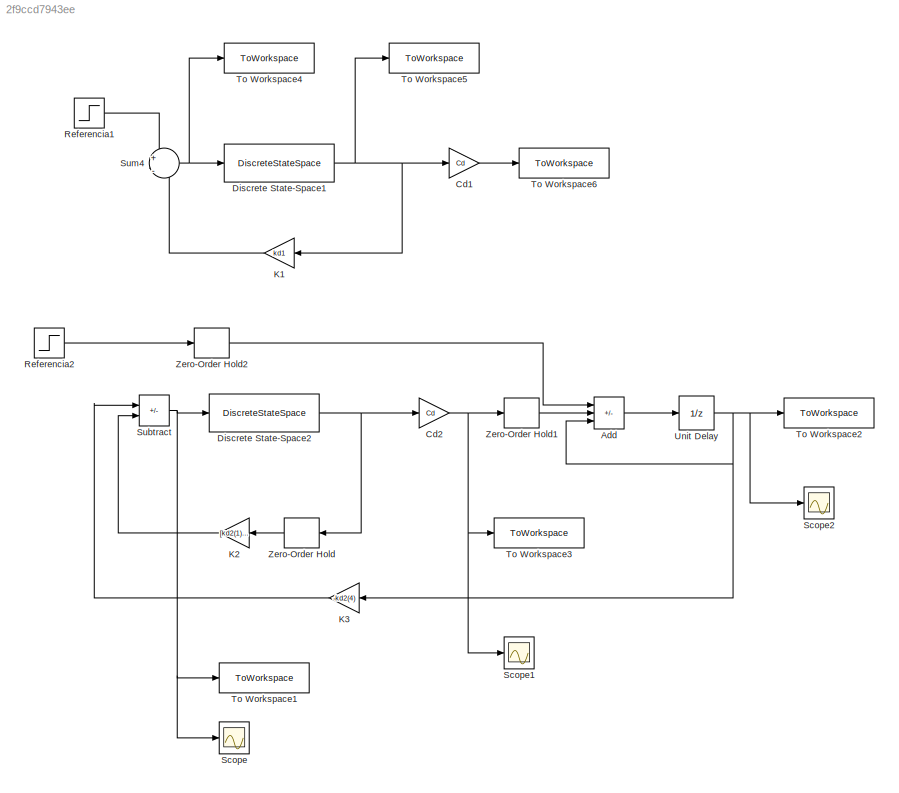
MODEL slx_2f9ccd7943ee
KIND model
CONFIG AbsTol = auto
CONFIG EnableMultiTasking = off
CONFIG FixedStep = auto
CONFIG MaxStep = auto
CONFIG MinStep = auto
CONFIG RelTol = 1e-3
CONFIG SampleTimeConstraint = Unconstrained
CONFIG SolverName = VariableStepAuto
CONFIG StartTime = 0.0
CONFIG StopTime = 30
BLOCK [Sum] Add
  IconShape = rectangular
  Inputs = +-+
BLOCK [Gain] Cd1
  Gain = Cd
  Multiplication = Matrix(K*u)
BLOCK [Gain] Cd2
  Gain = Cd
  Multiplication = Matrix(K*u)
BLOCK [DiscreteStateSpace] Discrete State-Space1
  A = F
  B = H
  C = [1 0 0; 0 1 0; 0 0 1]
  D = [0;0;0]
  SampleTime = T
BLOCK [DiscreteStateSpace] Discrete State-Space2
  A = F
  B = H
  C = [1 0 0; 0 1 0; 0 0 1]
  D = [0;0;0]
  SampleTime = T
BLOCK [Gain] K1
  Gain = kd1
  Multiplication = Matrix(K*u)
BLOCK [Gain] K2
  Gain = [kd2(1) kd2(2) kd2(3)]
  Multiplication = Matrix(K*u)
BLOCK [Gain] K3
  Gain = -kd2(4)
BLOCK [Step] Referencia1
  SampleTime = 0
  Time = 0
BLOCK [Step] Referencia2
  SampleTime = 0
  Time = 0
BLOCK [Scope] Scope
  Floating = off
  NumInputPorts = 1
  ScopeSpecificationString = Simulink.scopes.TimeScopeBlockCfg('CurrentConfiguration', extmgr.ConfigurationSet(extmgr.Configuration('Core','General UI',true),extmgr.Configuration('Core','Source UI',true),extmgr.Configuration('Sources','WiredSimulink',true),extmgr.Configuration('Visuals','Time Domain',true,'SerializedDisplays',{struct('MinYLimReal','-5.05858','MaxYLimReal','9.04459','YLabelReal','','MinYLimMag','0.00000','MaxY...<+1359ch>
BLOCK [Scope] Scope1
  Floating = off
  NumInputPorts = 1
  ScopeSpecificationString = Simulink.scopes.TimeScopeBlockCfg('CurrentConfiguration', extmgr.ConfigurationSet(extmgr.Configuration('Core','General UI',true),extmgr.Configuration('Core','Source UI',true),extmgr.Configuration('Sources','WiredSimulink',true,'DataLoggingVariableName','ScopeData1'),extmgr.Configuration('Visuals','Time Domain',true,'SerializedDisplays',{struct('MinYLimReal','-0.15925','MaxYLimReal','1.43329','YLab...<+1395ch>
BLOCK [Scope] Scope2
  Floating = off
  NumInputPorts = 1
  ScopeSpecificationString = Simulink.scopes.TimeScopeBlockCfg('CurrentConfiguration', extmgr.ConfigurationSet(extmgr.Configuration('Core','General UI',true),extmgr.Configuration('Core','Source UI',true),extmgr.Configuration('Sources','WiredSimulink',true,'DataLoggingVariableName','ScopeData2'),extmgr.Configuration('Visuals','Time Domain',true,'SerializedDisplays',{struct('MinYLimReal','-0.41628','MaxYLimReal','3.74653','YLab...<+1400ch>
BLOCK [Sum] Subtract
  IconShape = rectangular
  Inputs = +-
BLOCK [Sum] Sum4
  Inputs = +|-
BLOCK [ToWorkspace] To Workspace1
  FixptAsFi = on
  MaxDataPoints = inf
  SampleTime = -1
  SaveFormat = Timeseries
  VariableName = u
BLOCK [ToWorkspace] To Workspace2
  FixptAsFi = on
  MaxDataPoints = inf
  SampleTime = -1
  SaveFormat = Timeseries
  VariableName = x
BLOCK [ToWorkspace] To Workspace3
  FixptAsFi = on
  MaxDataPoints = inf
  SampleTime = -1
  SaveFormat = Timeseries
  VariableName = y
BLOCK [ToWorkspace] To Workspace4
  FixptAsFi = on
  MaxDataPoints = inf
  SampleTime = -1
  SaveFormat = Timeseries
  VariableName = u1
BLOCK [ToWorkspace] To Workspace5
  FixptAsFi = on
  MaxDataPoints = inf
  SampleTime = -1
  SaveFormat = Timeseries
  VariableName = x1
BLOCK [ToWorkspace] To Workspace6
  FixptAsFi = on
  MaxDataPoints = inf
  SampleTime = -1
  SaveFormat = Timeseries
  VariableName = y1
BLOCK [UnitDelay] Unit Delay
  HasFrameUpgradeWarning = on
  SampleTime = -1
BLOCK [ZeroOrderHold] Zero-Order Hold
  SampleTime = T
BLOCK [ZeroOrderHold] Zero-Order Hold1
  SampleTime = T
BLOCK [ZeroOrderHold] Zero-Order Hold2
  SampleTime = T
LINE Add:1 -> Unit Delay:1
LINE Cd1:1 -> To Workspace6:1
NET Cd2:1 -> Scope1:1, To Workspace3:1, Zero-Order Hold1:1
NET Discrete State-Space1:1 -> Cd1:1, K1:1, To Workspace5:1
NET Discrete State-Space2:1 -> Cd2:1, Zero-Order Hold:1
LINE K1:1 -> Sum4:2
LINE K2:1 -> Subtract:2
LINE K3:1 -> Subtract:1
LINE Referencia1:1 -> Sum4:1
LINE Referencia2:1 -> Zero-Order Hold2:1
NET Subtract:1 -> Discrete State-Space2:1, Scope:1, To Workspace1:1
NET Sum4:1 -> Discrete State-Space1:1, To Workspace4:1
NET Unit Delay:1 -> Add:3, K3:1, Scope2:1, To Workspace2:1
LINE Zero-Order Hold1:1 -> Add:2
LINE Zero-Order Hold2:1 -> Add:1
LINE Zero-Order Hold:1 -> K2:1
note: NET lines group one-source signal fan-out (src -> all destinations, sorted); 1:1 wires keep LINE
